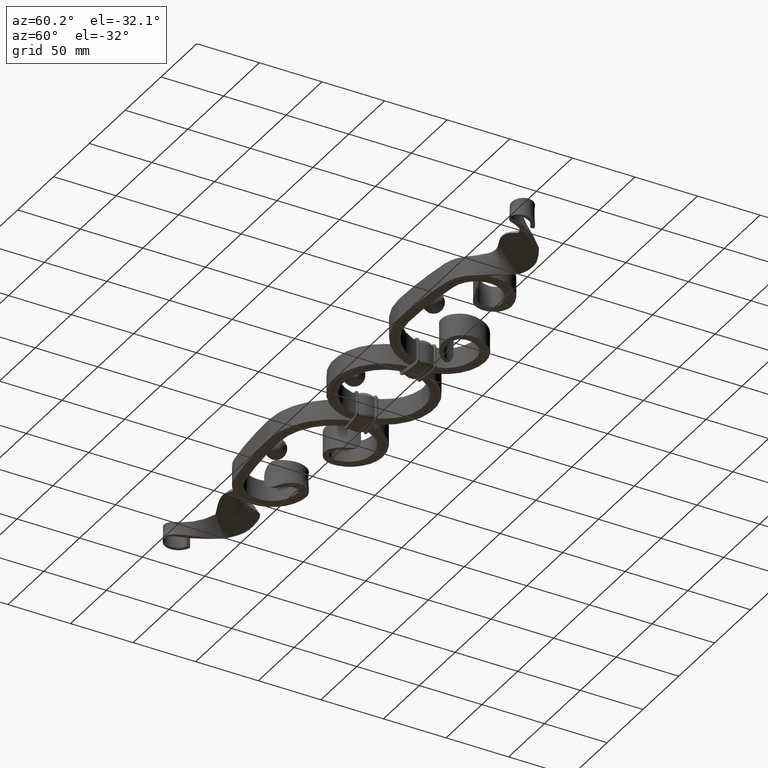
[diagram: clean part render]
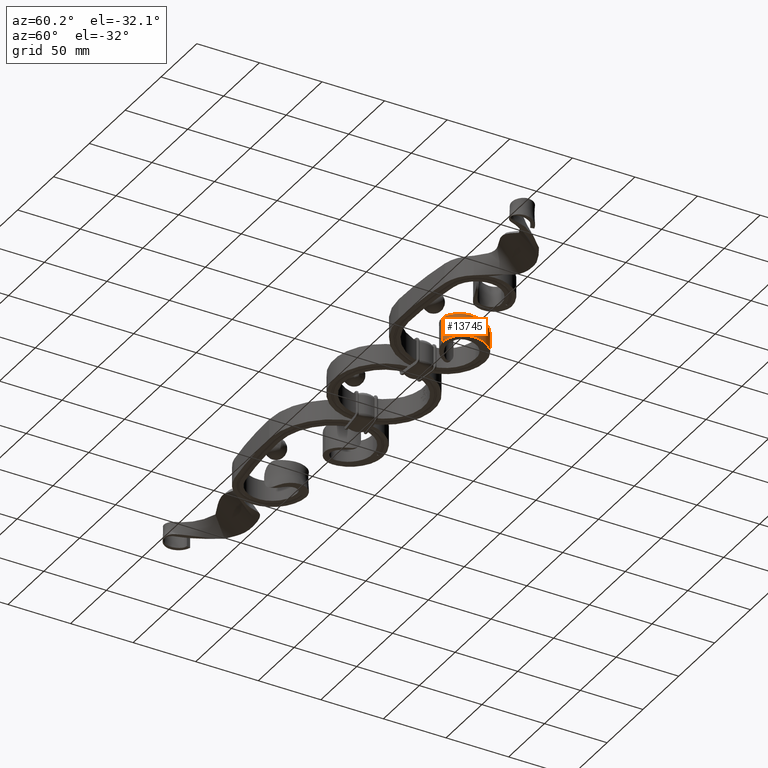
[diagram: same view with one face highlighted and labeled with its STEP entity id]
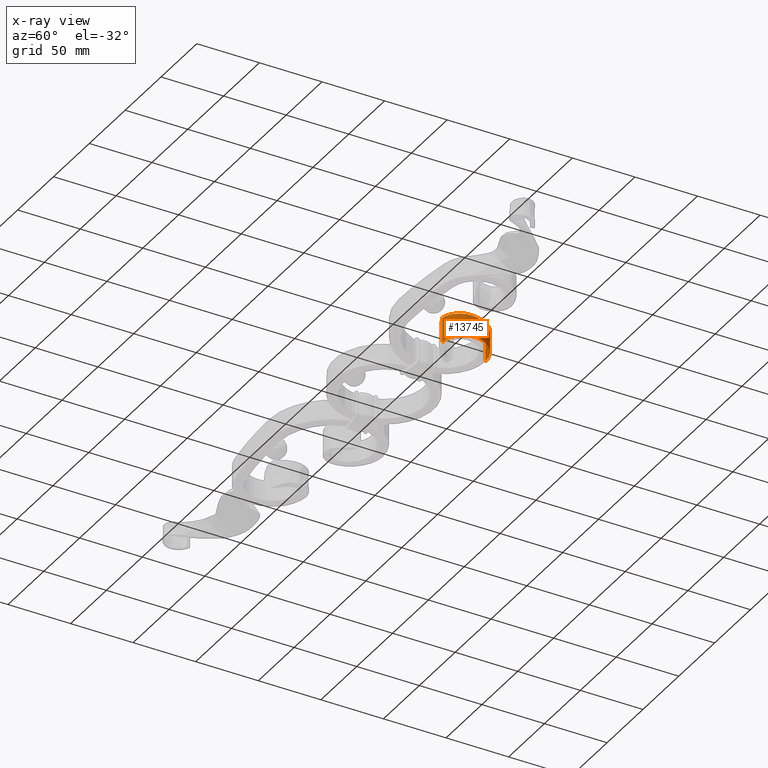
[diagram: x-ray of the same camera — body ghosted, the highlighted face saturated]
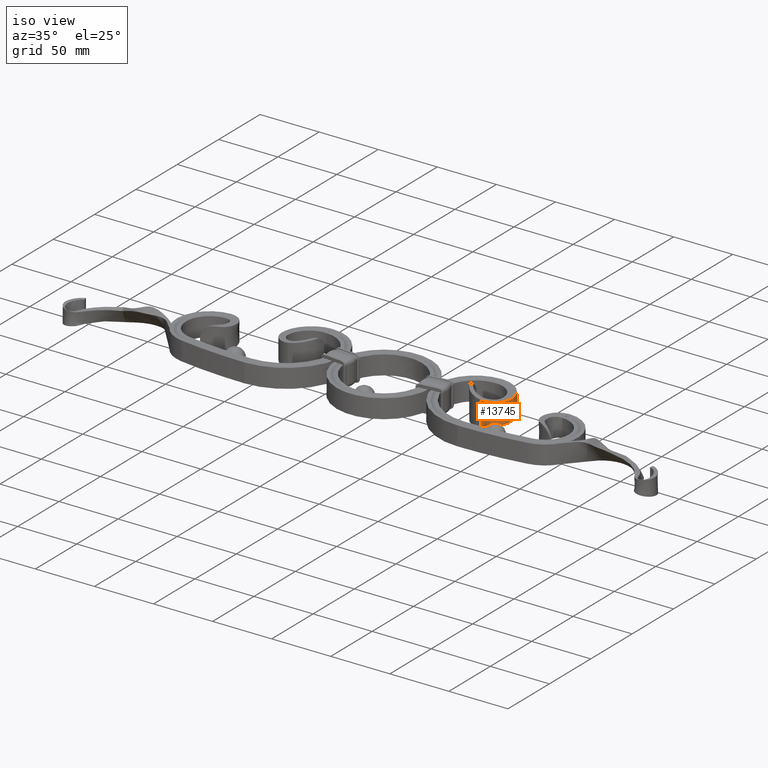
[diagram: same view with one face highlighted and labeled with its STEP entity id]
A machine part, auxiliary view. The second image highlights one B-rep face of the part: STEP entity #13745.
The next image is the same camera in x-ray: the body ghosted, the highlighted face saturated — about 0% of this face is hidden behind the body in this view.
A second angle (iso view) of the same face is appended — the face is thin or edge-on in the first view.
In plain terms, the highlighted face is a freeform B-spline surface patch.
Its self-contained STEP definition (entity closure, byte-faithful):
#33 = B_SPLINE_CURVE_WITH_KNOTS ( 'NONE', 3,
 ( #8649, #2790, #20309, #22508, #10704, #12492, #10450, #18221, #8568, #22147, #12668, #12573, #24511, #917, #18386, #6657, #24162, #10619, #16269, #24259, #14665, #8480, #24426, #6401, #2710, #8392, #18139, #10368, #12328, #12412, #22413 ),
 .UNSPECIFIED., .F., .F.,
 ( 4, 1, 1, 1, 1, 1, 1, 1, 1, 1, 1, 1, 1, 1, 1, 1, 1, 1, 1, 1, 1, 1, 1, 1, 1, 1, 1, 1, 4 ),
 ( 0.000000000000000000, 0.06794512975733787985, 0.08659164067010295673, 0.1363996202310865380, 0.1738138882748209990, 0.2238310087896952794, 0.2426848635812446364, 0.3120012860420503520, 0.3816696948964058977, 0.4007635763965586295, 0.4518537143000475598, 0.4903155937159637823, 0.5416620770876889868, 0.5611349307130316655, 0.6314104069712571654, 0.6708641814195795972, 0.6815642861642118300, 0.7102004039453199136, 0.7317524508846335873, 0.7606864311088056274, 0.7716056410514339214, 0.8117808314421571803, 0.8525204041796838883, 0.8637215420025856627, 0.8936807913053945729, 0.9162390932117493447, 0.9465222140904242520, 0.9579398682975939217, 1.000000000000000000 ),
 .UNSPECIFIED. ) ;
#307 = CARTESIAN_POINT ( 'NONE',  ( 88.09279747560748319, 1.466612555725262723, -9.427148562725459868 ) ) ;
#393 = CARTESIAN_POINT ( 'NONE',  ( 83.51330542435954385, 0.08929198171200818102, -9.833704889972812779 ) ) ;
#539 = CARTESIAN_POINT ( 'NONE',  ( 72.99065374024247888, 39.90882088156548235, -7.999999999999996447 ) ) ;
#702 = B_SPLINE_SURFACE_WITH_KNOTS ( 'NONE', 3, 3, ( 
 ( #705, #539, #8443, #22201, #12375, #8531, #10580, #2668, #16401, #18354, #6791, #22643, #12624, #4807, #16729, #20528, #10920, #18699, #8701, #7052, #16481, #24647, #2757, #791, #22466, #6964, #12545, #12711, #14540, #14813, #9037 ),
 ( #14901, #8956, #4984, #22562, #18610, #18525, #4899, #879, #8780, #969, #1052, #22813, #10756, #4719, #2919, #18786, #11009, #10665, #14724, #20440, #3016, #3094, #24556, #16649, #6709, #12799, #16559, #18435, #1135, #6883, #20782 ),
 ( #20696, #2840, #20613, #8879, #14628, #16808, #10845, #22726, #24476, #24737, #12887, #5067, #3525, #20871, #11256, #7300, #3439, #11344, #9453, #24893, #17152, #25131, #5238, #1303, #1389, #5157, #7135, #23241, #16896, #5402, #1477 ),
 ( #15144, #14982, #24818, #25053, #12971, #3265, #19130, #3187, #13221, #18877, #1225, #7456, #21202, #18972, #15224, #9117, #13302, #17231, #9210, #15304, #5495, #1558, #19213, #22904, #21033, #16989, #11085, #19042, #13054, #9293, #15065 ) ),
 .UNSPECIFIED., .F., .F., .F.,
 ( 4, 4 ),
 ( 4, 1, 1, 1, 1, 1, 1, 1, 1, 1, 1, 1, 1, 1, 1, 1, 1, 1, 1, 1, 1, 1, 1, 1, 1, 1, 1, 1, 4 ),
 ( 0.000000000000000000, 1.000000000000000000 ),
 ( 0.000000000000000000, 0.06794512975733787985, 0.08659164067010295673, 0.1363996202310865380, 0.1738138882748209990, 0.2238310087896952794, 0.2426848635812446364, 0.3120012860420503520, 0.3816696948964058977, 0.4007635763965586295, 0.4518537143000475598, 0.4903155937159637823, 0.5416620770876889868, 0.5611349307130316655, 0.6314104069712571654, 0.6708641814195795972, 0.6815642861642118300, 0.7102004039453199136, 0.7317524508846335873, 0.7606864311088056274, 0.7716056410514339214, 0.8117808314421571803, 0.8525204041796838883, 0.8637215420025856627, 0.8936807913053945729, 0.9162390932117493447, 0.9465222140904242520, 0.9579398682975939217, 1.000000000000000000 ),
 .UNSPECIFIED. ) ;
#705 = CARTESIAN_POINT ( 'NONE',  ( 71.55417524053044076, 40.00000000000000000, -7.999999999999996447 ) ) ;
#791 = CARTESIAN_POINT ( 'NONE',  ( 90.69832019793642530, 3.068848605675260632, -9.169429455570465848 ) ) ;
#879 = CARTESIAN_POINT ( 'NONE',  ( 86.80723047342250709, 34.87612871456934727, -2.667349890538593726 ) ) ;
#917 = CARTESIAN_POINT ( 'NONE',  ( 95.83554408407960068, 21.08336979812500189, 8.342952472315010581 ) ) ;
#969 = CARTESIAN_POINT ( 'NONE',  ( 91.43919802317056167, 30.24597992729037799, -2.695205813022747865 ) ) ;
#1052 = CARTESIAN_POINT ( 'NONE',  ( 93.03467270469869277, 27.85247714783378115, -2.718647470820001022 ) ) ;
#1135 = CARTESIAN_POINT ( 'NONE',  ( 83.51330542435954385, 0.08929198171201013778, -3.277901629990950028 ) ) ;
#1225 = CARTESIAN_POINT ( 'NONE',  ( 93.03467270469869277, 27.85247714783378115, 8.155942412460001734 ) ) ;
#1303 = CARTESIAN_POINT ( 'NONE',  ( 90.69832019793642530, 3.068848605675260188, 3.056476485190155579 ) ) ;
#1389 = CARTESIAN_POINT ( 'NONE',  ( 89.26581369699228219, 2.111829770442883003, 3.104219496820625590 ) ) ;
#1477 = CARTESIAN_POINT ( 'NONE',  ( 81.55417548760694046, 4.625929269271485322E-15, 3.333333333333332593 ) ) ;
#1558 = CARTESIAN_POINT ( 'NONE',  ( 93.47925699009725520, 5.847851718327832238, 8.918795383760825146 ) ) ;
#1616 = FACE_OUTER_BOUND ( 'NONE', #23130, .T. ) ;
#1983 = EDGE_CURVE ( 'NONE', #10532, #5742, #21062, .T. ) ;
#2027 = CARTESIAN_POINT ( 'NONE',  ( 95.20843036837121076, 23.23858912827623513, -8.286764779665892533 ) ) ;
#2243 = ORIENTED_EDGE ( 'NONE', *, *, #1983, .F. ) ;
#2483 = B_SPLINE_CURVE_WITH_KNOTS ( 'NONE', 3,
 ( #10008, #25538, #19610, #4149, #7938, #9843, #21698, #13691, #15762, #23633, #11802, #13782, #2027, #3993, #17695, #17863, #6133, #9926, #23720, #24062, #12225, #14128, #6559, #24238, #14042, #307, #16002, #16159, #393, #8279, #22040 ),
 .UNSPECIFIED., .F., .F.,
 ( 4, 1, 1, 1, 1, 1, 1, 1, 1, 1, 1, 1, 1, 1, 1, 1, 1, 1, 1, 1, 1, 1, 1, 1, 1, 1, 1, 1, 4 ),
 ( 0.000000000000000000, 0.06794512975733787985, 0.08659164067010295673, 0.1363996202310865380, 0.1738138882748209990, 0.2238310087896952794, 0.2426848635812446364, 0.3120012860420503520, 0.3816696948964058977, 0.4007635763965586295, 0.4518537143000475598, 0.4903155937159637823, 0.5416620770876889868, 0.5611349307130316655, 0.6314104069712571654, 0.6708641814195795972, 0.6815642861642118300, 0.7102004039453199136, 0.7317524508846335873, 0.7606864311088056274, 0.7716056410514339214, 0.8117808314421571803, 0.8525204041796838883, 0.8637215420025856627, 0.8936807913053945729, 0.9162390932117493447, 0.9465222140904242520, 0.9579398682975939217, 1.000000000000000000 ),
 .UNSPECIFIED. ) ;
#2668 = CARTESIAN_POINT ( 'NONE',  ( 86.80723047342250709, 34.87612871456934727, -8.002049671615782955 ) ) ;
#2710 = CARTESIAN_POINT ( 'NONE',  ( 89.26581369699228219, 2.111829770442883003, 9.312658490461878102 ) ) ;
#2757 = CARTESIAN_POINT ( 'NONE',  ( 92.20041039109108283, 4.325488585022212007, -8.966877282724421860 ) ) ;
#2790 = CARTESIAN_POINT ( 'NONE',  ( 72.99065374024247888, 39.90882088156548235, 7.999999999999996447 ) ) ;
#2840 = CARTESIAN_POINT ( 'NONE',  ( 72.99065374024247888, 39.90882088156548235, 2.666666666666665630 ) ) ;
#2919 = CARTESIAN_POINT ( 'NONE',  ( 96.38778220324503820, 18.29406892688744080, -2.805998930185956475 ) ) ;
#3016 = CARTESIAN_POINT ( 'NONE',  ( 94.43798406738022777, 7.283061074104139720, -2.947583449089344665 ) ) ;
#3094 = CARTESIAN_POINT ( 'NONE',  ( 93.47925699009725520, 5.847851718327832238, -2.972931794586942011 ) ) ;
#3187 = CARTESIAN_POINT ( 'NONE',  ( 86.80723047342250709, 34.87612871456934727, 8.002049671615782955 ) ) ;
#3265 = CARTESIAN_POINT ( 'NONE',  ( 82.45997554104320670, 37.55404473536936649, 8.000209995917282768 ) ) ;
#3439 = CARTESIAN_POINT ( 'NONE',  ( 96.45819296375229612, 13.04113908251864551, 2.861236650270446713 ) ) ;
#3525 = CARTESIAN_POINT ( 'NONE',  ( 95.20843036837121076, 23.23858912827623513, 2.762254926555297363 ) ) ;
#3993 = CARTESIAN_POINT ( 'NONE',  ( 95.83554408407960068, 21.08336979812500189, -8.342952472315010581 ) ) ;
#4149 = CARTESIAN_POINT ( 'NONE',  ( 77.65284857541797692, 39.27235870387767847, -8.000006640020535187 ) ) ;
#4526 = ORIENTED_EDGE ( 'NONE', *, *, #15562, .F. ) ;
#4719 = CARTESIAN_POINT ( 'NONE',  ( 95.83554408407960068, 21.08336979812500189, -2.780984157438336268 ) ) ;
#4807 = CARTESIAN_POINT ( 'NONE',  ( 95.83554408407960068, 21.08336979812500189, -8.342952472315010581 ) ) ;
#4899 = CARTESIAN_POINT ( 'NONE',  ( 84.41591605155376499, 36.47650633335403825, -2.666400907371573759 ) ) ;
#4984 = CARTESIAN_POINT ( 'NONE',  ( 74.83778795738803069, 39.84779105532804522, -2.666665129398439138 ) ) ;
#5067 = CARTESIAN_POINT ( 'NONE',  ( 94.10743959269382231, 25.89503710667512948, 2.737882853251266013 ) ) ;
#5157 = CARTESIAN_POINT ( 'NONE',  ( 88.09279747560748319, 1.466612555725264277, 3.142382854241820400 ) ) ;
#5238 = CARTESIAN_POINT ( 'NONE',  ( 92.20041039109108283, 4.325488585022212007, 2.988959094241474101 ) ) ;
#5402 = CARTESIAN_POINT ( 'NONE',  ( 82.41599295519601753, 0.05460316255548321868, 3.308900696828144916 ) ) ;
#5495 = CARTESIAN_POINT ( 'NONE',  ( 94.43798406738022777, 7.283061074104139720, 8.842750347268035327 ) ) ;
#5742 = VERTEX_POINT ( 'NONE', #15712 ) ;
#6133 = CARTESIAN_POINT ( 'NONE',  ( 96.45819296375229612, 13.04113908251864551, -8.583709950811343248 ) ) ;
#6401 = CARTESIAN_POINT ( 'NONE',  ( 90.69832019793642530, 3.068848605675261965, 9.169429455570465848 ) ) ;
#6559 = CARTESIAN_POINT ( 'NONE',  ( 92.20041039109108283, 4.325488585022212007, -8.966877282724421860 ) ) ;
#6657 = CARTESIAN_POINT ( 'NONE',  ( 96.65900103382919895, 15.71716783144788288, 8.456859884340660827 ) ) ;
#6709 = CARTESIAN_POINT ( 'NONE',  ( 89.26581369699228219, 2.111829770442882115, -3.104219496820626034 ) ) ;
#6791 = CARTESIAN_POINT ( 'NONE',  ( 93.03467270469869277, 27.85247714783378115, -8.155942412460001734 ) ) ;
#6883 = CARTESIAN_POINT ( 'NONE',  ( 82.41599295519601753, 0.05460316255548108150, -3.308900696828148469 ) ) ;
#6964 = CARTESIAN_POINT ( 'NONE',  ( 88.09279747560748319, 1.466612555725262723, -9.427148562725456316 ) ) ;
#7052 = CARTESIAN_POINT ( 'NONE',  ( 95.08310317996242134, 8.453519840896639437, -8.787101630274856134 ) ) ;
#7135 = CARTESIAN_POINT ( 'NONE',  ( 86.49188230332092076, 0.8031155004753742777, 3.191253812218683983 ) ) ;
#7300 = CARTESIAN_POINT ( 'NONE',  ( 96.65900103382919895, 15.71716783144788288, 2.818953294780221164 ) ) ;
#7456 = CARTESIAN_POINT ( 'NONE',  ( 94.10743959269382231, 25.89503710667512948, 8.213648559753799816 ) ) ;
#7938 = CARTESIAN_POINT ( 'NONE',  ( 79.79506403083318844, 38.65641866712302743, -7.999930550730717016 ) ) ;
#8279 = CARTESIAN_POINT ( 'NONE',  ( 82.41599295519601753, 0.05460316255547838227, -9.926702090484436525 ) ) ;
#8392 = CARTESIAN_POINT ( 'NONE',  ( 88.09279747560748319, 1.466612555725265166, 9.427148562725459868 ) ) ;
#8443 = CARTESIAN_POINT ( 'NONE',  ( 74.83778795738803069, 39.84779105532804522, -7.999995388195316970 ) ) ;
#8480 = CARTESIAN_POINT ( 'NONE',  ( 93.47925699009725520, 5.847851718327832238, 8.918795383760825146 ) ) ;
#8531 = CARTESIAN_POINT ( 'NONE',  ( 82.45997554104320670, 37.55404473536936649, -8.000209995917282768 ) ) ;
#8568 = CARTESIAN_POINT ( 'NONE',  ( 89.32777546986578443, 32.75868243643421351, 7.965758198377305810 ) ) ;
#8649 = CARTESIAN_POINT ( 'NONE',  ( 71.55417524053044076, 40.00000000000000000, 7.999999999999996447 ) ) ;
#8701 = CARTESIAN_POINT ( 'NONE',  ( 95.74579707538015327, 10.05477187609095857, -8.713432357184407451 ) ) ;
#8780 = CARTESIAN_POINT ( 'NONE',  ( 89.32777546986578443, 32.75868243643421351, -2.655252732792435122 ) ) ;
#8879 = CARTESIAN_POINT ( 'NONE',  ( 77.65284857541797692, 39.27235870387767847, 2.666668880006845654 ) ) ;
#8956 = CARTESIAN_POINT ( 'NONE',  ( 72.99065374024247888, 39.90882088156548235, -2.666666666666665630 ) ) ;
#9037 = CARTESIAN_POINT ( 'NONE',  ( 81.55417548760694046, 0.000000000000000000, -9.999999999999998224 ) ) ;
#9103 = ORIENTED_EDGE ( 'NONE', *, *, #15904, .F. ) ;
#9117 = CARTESIAN_POINT ( 'NONE',  ( 96.65900103382919895, 15.71716783144788288, 8.456859884340660827 ) ) ;
#9210 = CARTESIAN_POINT ( 'NONE',  ( 95.74579707538015327, 10.05477187609095857, 8.713432357184407451 ) ) ;
#9293 = CARTESIAN_POINT ( 'NONE',  ( 82.41599295519601753, 0.05460316255548535586, 9.926702090484436525 ) ) ;
#9453 = CARTESIAN_POINT ( 'NONE',  ( 95.74579707538015327, 10.05477187609095857, 2.904477452394800707 ) ) ;
#9843 = CARTESIAN_POINT ( 'NONE',  ( 82.45997554104320670, 37.55404473536936649, -8.000209995917282768 ) ) ;
#9926 = CARTESIAN_POINT ( 'NONE',  ( 96.11778753093172156, 11.33977045738280154, -8.656554713120030442 ) ) ;
#9968 = EDGE_CURVE ( 'NONE', #23453, #5742, #33, .T. ) ;
#10008 = CARTESIAN_POINT ( 'NONE',  ( 71.55417524053044076, 40.00000000000000000, -7.999999999999996447 ) ) ;
#10368 = CARTESIAN_POINT ( 'NONE',  ( 85.20888140837466551, 0.4350029184513073410, 9.686987308456190604 ) ) ;
#10450 = CARTESIAN_POINT ( 'NONE',  ( 84.41591605155376499, 36.47650633335403825, 7.999202722114721276 ) ) ;
#10532 = VERTEX_POINT ( 'NONE', #11765 ) ;
#10580 = CARTESIAN_POINT ( 'NONE',  ( 84.41591605155376499, 36.47650633335403825, -7.999202722114721276 ) ) ;
#10619 = CARTESIAN_POINT ( 'NONE',  ( 96.11778753093172156, 11.33977045738280154, 8.656554713120030442 ) ) ;
#10665 = CARTESIAN_POINT ( 'NONE',  ( 96.11778753093172156, 11.33977045738280154, -2.885518237706677702 ) ) ;
#10704 = CARTESIAN_POINT ( 'NONE',  ( 79.79506403083318844, 38.65641866712302743, 7.999930550730717016 ) ) ;
#10756 = CARTESIAN_POINT ( 'NONE',  ( 95.20843036837121076, 23.23858912827623513, -2.762254926555297363 ) ) ;
#10845 = CARTESIAN_POINT ( 'NONE',  ( 84.41591605155376499, 36.47650633335403825, 2.666400907371573759 ) ) ;
#10920 = CARTESIAN_POINT ( 'NONE',  ( 96.45819296375229612, 13.04113908251864551, -8.583709950811343248 ) ) ;
#11009 = CARTESIAN_POINT ( 'NONE',  ( 96.45819296375229612, 13.04113908251864551, -2.861236650270446713 ) ) ;
#11085 = CARTESIAN_POINT ( 'NONE',  ( 86.49188230332092076, 0.8031155004753756099, 9.573761436656061719 ) ) ;
#11256 = CARTESIAN_POINT ( 'NONE',  ( 96.38778220324503820, 18.29406892688744080, 2.805998930185956475 ) ) ;
#11344 = CARTESIAN_POINT ( 'NONE',  ( 96.11778753093172156, 11.33977045738280154, 2.885518237706677702 ) ) ;
#11765 = CARTESIAN_POINT ( 'NONE',  ( 81.55417548760694046, 0.000000000000000000, -9.999999999999998224 ) ) ;
#11802 = CARTESIAN_POINT ( 'NONE',  ( 93.03467270469869277, 27.85247714783378115, -8.155942412460001734 ) ) ;
#12225 = CARTESIAN_POINT ( 'NONE',  ( 94.43798406738022777, 7.283061074104139720, -8.842750347268035327 ) ) ;
#12328 = CARTESIAN_POINT ( 'NONE',  ( 83.51330542435954385, 0.08929198171201399581, 9.833704889972812779 ) ) ;
#12375 = CARTESIAN_POINT ( 'NONE',  ( 79.79506403083318844, 38.65641866712302743, -7.999930550730717016 ) ) ;
#12412 = CARTESIAN_POINT ( 'NONE',  ( 82.41599295519601753, 0.05460316255548535586, 9.926702090484436525 ) ) ;
#12492 = CARTESIAN_POINT ( 'NONE',  ( 82.45997554104320670, 37.55404473536936649, 8.000209995917282768 ) ) ;
#12545 = CARTESIAN_POINT ( 'NONE',  ( 86.49188230332092076, 0.8031155004753715021, -9.573761436656070600 ) ) ;
#12573 = CARTESIAN_POINT ( 'NONE',  ( 94.10743959269382231, 25.89503710667512948, 8.213648559753799816 ) ) ;
#12624 = CARTESIAN_POINT ( 'NONE',  ( 95.20843036837121076, 23.23858912827623513, -8.286764779665892533 ) ) ;
#12668 = CARTESIAN_POINT ( 'NONE',  ( 93.03467270469869277, 27.85247714783378115, 8.155942412460001734 ) ) ;
#12711 = CARTESIAN_POINT ( 'NONE',  ( 85.20888140837466551, 0.4350029184513027336, -9.686987308456162182 ) ) ;
#12799 = CARTESIAN_POINT ( 'NONE',  ( 88.09279747560748319, 1.466612555725263611, -3.142382854241818624 ) ) ;
#12887 = CARTESIAN_POINT ( 'NONE',  ( 93.03467270469869277, 27.85247714783378115, 2.718647470820001022 ) ) ;
#12971 = CARTESIAN_POINT ( 'NONE',  ( 79.79506403083318844, 38.65641866712302743, 7.999930550730717016 ) ) ;
#13054 = CARTESIAN_POINT ( 'NONE',  ( 83.51330542435954385, 0.08929198171201399581, 9.833704889972812779 ) ) ;
#13221 = CARTESIAN_POINT ( 'NONE',  ( 89.32777546986578443, 32.75868243643421351, 7.965758198377305810 ) ) ;
#13302 = CARTESIAN_POINT ( 'NONE',  ( 96.45819296375229612, 13.04113908251864551, 8.583709950811343248 ) ) ;
#13691 = CARTESIAN_POINT ( 'NONE',  ( 86.80723047342250709, 34.87612871456934727, -8.002049671615782955 ) ) ;
#13745 = ADVANCED_FACE ( 'NONE', ( #1616 ), #702, .T. ) ;
#13782 = CARTESIAN_POINT ( 'NONE',  ( 94.10743959269382231, 25.89503710667512948, -8.213648559753799816 ) ) ;
#14042 = CARTESIAN_POINT ( 'NONE',  ( 89.26581369699228219, 2.111829770442880339, -9.312658490461878102 ) ) ;
#14128 = CARTESIAN_POINT ( 'NONE',  ( 93.47925699009725520, 5.847851718327832238, -8.918795383760825146 ) ) ;
#14540 = CARTESIAN_POINT ( 'NONE',  ( 83.51330542435954385, 0.08929198171200812550, -9.833704889972832319 ) ) ;
#14600 = DIRECTION ( 'NONE',  ( 0.000000000000000000, 3.469446951953614682E-16, 1.000000000000000000 ) ) ;
#14628 = CARTESIAN_POINT ( 'NONE',  ( 79.79506403083318844, 38.65641866712302743, 2.666643516910239153 ) ) ;
#14665 = CARTESIAN_POINT ( 'NONE',  ( 94.43798406738022777, 7.283061074104139720, 8.842750347268035327 ) ) ;
#14724 = CARTESIAN_POINT ( 'NONE',  ( 95.74579707538015327, 10.05477187609095857, -2.904477452394800707 ) ) ;
#14813 = CARTESIAN_POINT ( 'NONE',  ( 82.41599295519601753, 0.05460316255547893738, -9.926702090484441854 ) ) ;
#14901 = CARTESIAN_POINT ( 'NONE',  ( 71.55417524053044076, 40.00000000000000000, -2.666666666666665630 ) ) ;
#14982 = CARTESIAN_POINT ( 'NONE',  ( 72.99065374024247888, 39.90882088156548235, 7.999999999999996447 ) ) ;
#15065 = CARTESIAN_POINT ( 'NONE',  ( 81.55417548760694046, 6.938893903907228378E-15, 9.999999999999998224 ) ) ;
#15144 = CARTESIAN_POINT ( 'NONE',  ( 71.55417524053044076, 40.00000000000000000, 7.999999999999996447 ) ) ;
#15224 = CARTESIAN_POINT ( 'NONE',  ( 96.38778220324503820, 18.29406892688744080, 8.417996790557868536 ) ) ;
#15304 = CARTESIAN_POINT ( 'NONE',  ( 95.08310317996242134, 8.453519840896639437, 8.787101630274856134 ) ) ;
#15562 = EDGE_CURVE ( 'NONE', #24674, #10532, #2483, .T. ) ;
#15712 = CARTESIAN_POINT ( 'NONE',  ( 81.55417548760694046, 6.938893903907228378E-15, 9.999999999999998224 ) ) ;
#15762 = CARTESIAN_POINT ( 'NONE',  ( 89.32777546986578443, 32.75868243643421351, -7.965758198377305810 ) ) ;
#15904 = EDGE_CURVE ( 'NONE', #23453, #24674, #19063, .T. ) ;
#16002 = CARTESIAN_POINT ( 'NONE',  ( 86.49188230332092076, 0.8031155004753715021, -9.573761436656061719 ) ) ;
#16159 = CARTESIAN_POINT ( 'NONE',  ( 85.20888140837466551, 0.4350029184513026781, -9.686987308456190604 ) ) ;
#16269 = CARTESIAN_POINT ( 'NONE',  ( 95.74579707538015327, 10.05477187609095857, 8.713432357184407451 ) ) ;
#16401 = CARTESIAN_POINT ( 'NONE',  ( 89.32777546986578443, 32.75868243643421351, -7.965758198377305810 ) ) ;
#16481 = CARTESIAN_POINT ( 'NONE',  ( 94.43798406738022777, 7.283061074104139720, -8.842750347268035327 ) ) ;
#16559 = CARTESIAN_POINT ( 'NONE',  ( 86.49188230332092076, 0.8031155004753730564, -3.191253812218691976 ) ) ;
#16649 = CARTESIAN_POINT ( 'NONE',  ( 90.69832019793642530, 3.068848605675260188, -3.056476485190155135 ) ) ;
#16729 = CARTESIAN_POINT ( 'NONE',  ( 96.38778220324503820, 18.29406892688744080, -8.417996790557868536 ) ) ;
#16808 = CARTESIAN_POINT ( 'NONE',  ( 82.45997554104320670, 37.55404473536936649, 2.666736665305760923 ) ) ;
#16896 = CARTESIAN_POINT ( 'NONE',  ( 83.51330542435954385, 0.08929198171201196965, 3.277901629990930488 ) ) ;
#16989 = CARTESIAN_POINT ( 'NONE',  ( 88.09279747560748319, 1.466612555725265166, 9.427148562725459868 ) ) ;
#17152 = CARTESIAN_POINT ( 'NONE',  ( 94.43798406738022777, 7.283061074104139720, 2.947583449089344665 ) ) ;
#17231 = CARTESIAN_POINT ( 'NONE',  ( 96.11778753093172156, 11.33977045738280154, 8.656554713120030442 ) ) ;
#17695 = CARTESIAN_POINT ( 'NONE',  ( 96.38778220324503820, 18.29406892688744080, -8.417996790557868536 ) ) ;
#17863 = CARTESIAN_POINT ( 'NONE',  ( 96.65900103382919895, 15.71716783144788288, -8.456859884340660827 ) ) ;
#18139 = CARTESIAN_POINT ( 'NONE',  ( 86.49188230332092076, 0.8031155004753756099, 9.573761436656061719 ) ) ;
#18221 = CARTESIAN_POINT ( 'NONE',  ( 86.80723047342250709, 34.87612871456934727, 8.002049671615782955 ) ) ;
#18354 = CARTESIAN_POINT ( 'NONE',  ( 91.43919802317056167, 30.24597992729037799, -8.085617439068245815 ) ) ;
#18386 = CARTESIAN_POINT ( 'NONE',  ( 96.38778220324503820, 18.29406892688744080, 8.417996790557868536 ) ) ;
#18435 = CARTESIAN_POINT ( 'NONE',  ( 85.20888140837466551, 0.4350029184513041769, -3.228995769485378808 ) ) ;
#18525 = CARTESIAN_POINT ( 'NONE',  ( 82.45997554104320670, 37.55404473536936649, -2.666736665305760923 ) ) ;
#18610 = CARTESIAN_POINT ( 'NONE',  ( 79.79506403083318844, 38.65641866712302743, -2.666643516910239153 ) ) ;
#18699 = CARTESIAN_POINT ( 'NONE',  ( 96.11778753093172156, 11.33977045738280154, -8.656554713120030442 ) ) ;
#18786 = CARTESIAN_POINT ( 'NONE',  ( 96.65900103382919895, 15.71716783144788288, -2.818953294780221164 ) ) ;
#18877 = CARTESIAN_POINT ( 'NONE',  ( 91.43919802317056167, 30.24597992729037799, 8.085617439068245815 ) ) ;
#18972 = CARTESIAN_POINT ( 'NONE',  ( 95.83554408407960068, 21.08336979812500189, 8.342952472315010581 ) ) ;
#19042 = CARTESIAN_POINT ( 'NONE',  ( 85.20888140837466551, 0.4350029184513073410, 9.686987308456190604 ) ) ;
#19063 = LINE ( 'NONE', #22835, #20003 ) ;
#19130 = CARTESIAN_POINT ( 'NONE',  ( 84.41591605155376499, 36.47650633335403825, 7.999202722114721276 ) ) ;
#19213 = CARTESIAN_POINT ( 'NONE',  ( 92.20041039109108283, 4.325488585022211119, 8.966877282724421860 ) ) ;
#19610 = CARTESIAN_POINT ( 'NONE',  ( 74.83778795738803069, 39.84779105532804522, -7.999995388195316970 ) ) ;
#19738 = CARTESIAN_POINT ( 'NONE',  ( 71.55417524053044076, 40.00000000000000000, 7.999999999999996447 ) ) ;
#20003 = VECTOR ( 'NONE', #24831, 1000.000000000000000 ) ;
#20309 = CARTESIAN_POINT ( 'NONE',  ( 74.83778795738803069, 39.84779105532804522, 7.999995388195316970 ) ) ;
#20440 = CARTESIAN_POINT ( 'NONE',  ( 95.08310317996242134, 8.453519840896639437, -2.929033876758286858 ) ) ;
#20528 = CARTESIAN_POINT ( 'NONE',  ( 96.65900103382919895, 15.71716783144788288, -8.456859884340660827 ) ) ;
#20613 = CARTESIAN_POINT ( 'NONE',  ( 74.83778795738803069, 39.84779105532804522, 2.666665129398439138 ) ) ;
#20696 = CARTESIAN_POINT ( 'NONE',  ( 71.55417524053044076, 40.00000000000000000, 2.666666666666665630 ) ) ;
#20782 = CARTESIAN_POINT ( 'NONE',  ( 81.55417548760694046, 2.312964634635742661E-15, -3.333333333333332593 ) ) ;
#20871 = CARTESIAN_POINT ( 'NONE',  ( 95.83554408407960068, 21.08336979812500189, 2.780984157438336268 ) ) ;
#21033 = CARTESIAN_POINT ( 'NONE',  ( 89.26581369699228219, 2.111829770442883003, 9.312658490461878102 ) ) ;
#21062 = LINE ( 'NONE', #24182, #24228 ) ;
#21202 = CARTESIAN_POINT ( 'NONE',  ( 95.20843036837121076, 23.23858912827623513, 8.286764779665892533 ) ) ;
#21589 = CARTESIAN_POINT ( 'NONE',  ( 71.55417524053044076, 40.00000000000000000, -7.999999999999996447 ) ) ;
#21698 = CARTESIAN_POINT ( 'NONE',  ( 84.41591605155376499, 36.47650633335403825, -7.999202722114721276 ) ) ;
#22040 = CARTESIAN_POINT ( 'NONE',  ( 81.55417548760694046, 0.000000000000000000, -9.999999999999998224 ) ) ;
#22147 = CARTESIAN_POINT ( 'NONE',  ( 91.43919802317056167, 30.24597992729037799, 8.085617439068245815 ) ) ;
#22201 = CARTESIAN_POINT ( 'NONE',  ( 77.65284857541797692, 39.27235870387767847, -8.000006640020535187 ) ) ;
#22413 = CARTESIAN_POINT ( 'NONE',  ( 81.55417548760694046, 6.938893903907228378E-15, 9.999999999999998224 ) ) ;
#22466 = CARTESIAN_POINT ( 'NONE',  ( 89.26581369699228219, 2.111829770442880339, -9.312658490461878102 ) ) ;
#22508 = CARTESIAN_POINT ( 'NONE',  ( 77.65284857541797692, 39.27235870387767847, 8.000006640020535187 ) ) ;
#22562 = CARTESIAN_POINT ( 'NONE',  ( 77.65284857541797692, 39.27235870387767847, -2.666668880006845654 ) ) ;
#22643 = CARTESIAN_POINT ( 'NONE',  ( 94.10743959269382231, 25.89503710667512948, -8.213648559753799816 ) ) ;
#22726 = CARTESIAN_POINT ( 'NONE',  ( 86.80723047342250709, 34.87612871456934727, 2.667349890538593726 ) ) ;
#22813 = CARTESIAN_POINT ( 'NONE',  ( 94.10743959269382231, 25.89503710667512948, -2.737882853251266013 ) ) ;
#22835 = CARTESIAN_POINT ( 'NONE',  ( 71.55417524053044076, 40.00000000000002132, 8.000000000000000000 ) ) ;
#22904 = CARTESIAN_POINT ( 'NONE',  ( 90.69832019793642530, 3.068848605675261965, 9.169429455570465848 ) ) ;
#23130 = EDGE_LOOP ( 'NONE', ( #9103, #23925, #2243, #4526 ) ) ;
#23241 = CARTESIAN_POINT ( 'NONE',  ( 85.20888140837466551, 0.4350029184513058977, 3.228995769485406786 ) ) ;
#23453 = VERTEX_POINT ( 'NONE', #19738 ) ;
#23633 = CARTESIAN_POINT ( 'NONE',  ( 91.43919802317056167, 30.24597992729037799, -8.085617439068245815 ) ) ;
#23720 = CARTESIAN_POINT ( 'NONE',  ( 95.74579707538015327, 10.05477187609095857, -8.713432357184407451 ) ) ;
#23925 = ORIENTED_EDGE ( 'NONE', *, *, #9968, .T. ) ;
#24062 = CARTESIAN_POINT ( 'NONE',  ( 95.08310317996242134, 8.453519840896639437, -8.787101630274856134 ) ) ;
#24162 = CARTESIAN_POINT ( 'NONE',  ( 96.45819296375229612, 13.04113908251864551, 8.583709950811343248 ) ) ;
#24182 = CARTESIAN_POINT ( 'NONE',  ( 81.55417548760694046, 0.000000000000000000, -9.999999999999998224 ) ) ;
#24228 = VECTOR ( 'NONE', #14600, 1000.000000000000000 ) ;
#24238 = CARTESIAN_POINT ( 'NONE',  ( 90.69832019793642530, 3.068848605675260632, -9.169429455570465848 ) ) ;
#24259 = CARTESIAN_POINT ( 'NONE',  ( 95.08310317996242134, 8.453519840896639437, 8.787101630274856134 ) ) ;
#24426 = CARTESIAN_POINT ( 'NONE',  ( 92.20041039109108283, 4.325488585022211119, 8.966877282724421860 ) ) ;
#24476 = CARTESIAN_POINT ( 'NONE',  ( 89.32777546986578443, 32.75868243643421351, 2.655252732792435122 ) ) ;
#24511 = CARTESIAN_POINT ( 'NONE',  ( 95.20843036837121076, 23.23858912827623513, 8.286764779665892533 ) ) ;
#24556 = CARTESIAN_POINT ( 'NONE',  ( 92.20041039109108283, 4.325488585022212007, -2.988959094241474546 ) ) ;
#24647 = CARTESIAN_POINT ( 'NONE',  ( 93.47925699009725520, 5.847851718327832238, -8.918795383760825146 ) ) ;
#24674 = VERTEX_POINT ( 'NONE', #21589 ) ;
#24737 = CARTESIAN_POINT ( 'NONE',  ( 91.43919802317056167, 30.24597992729037799, 2.695205813022747865 ) ) ;
#24818 = CARTESIAN_POINT ( 'NONE',  ( 74.83778795738803069, 39.84779105532804522, 7.999995388195316970 ) ) ;
#24831 = DIRECTION ( 'NONE',  ( 0.000000000000000000, 0.000000000000000000, -1.000000000000000000 ) ) ;
#24893 = CARTESIAN_POINT ( 'NONE',  ( 95.08310317996242134, 8.453519840896639437, 2.929033876758286858 ) ) ;
#25053 = CARTESIAN_POINT ( 'NONE',  ( 77.65284857541797692, 39.27235870387767847, 8.000006640020535187 ) ) ;
#25131 = CARTESIAN_POINT ( 'NONE',  ( 93.47925699009725520, 5.847851718327832238, 2.972931794586942011 ) ) ;
#25538 = CARTESIAN_POINT ( 'NONE',  ( 72.99065374024247888, 39.90882088156548235, -7.999999999999996447 ) ) ;